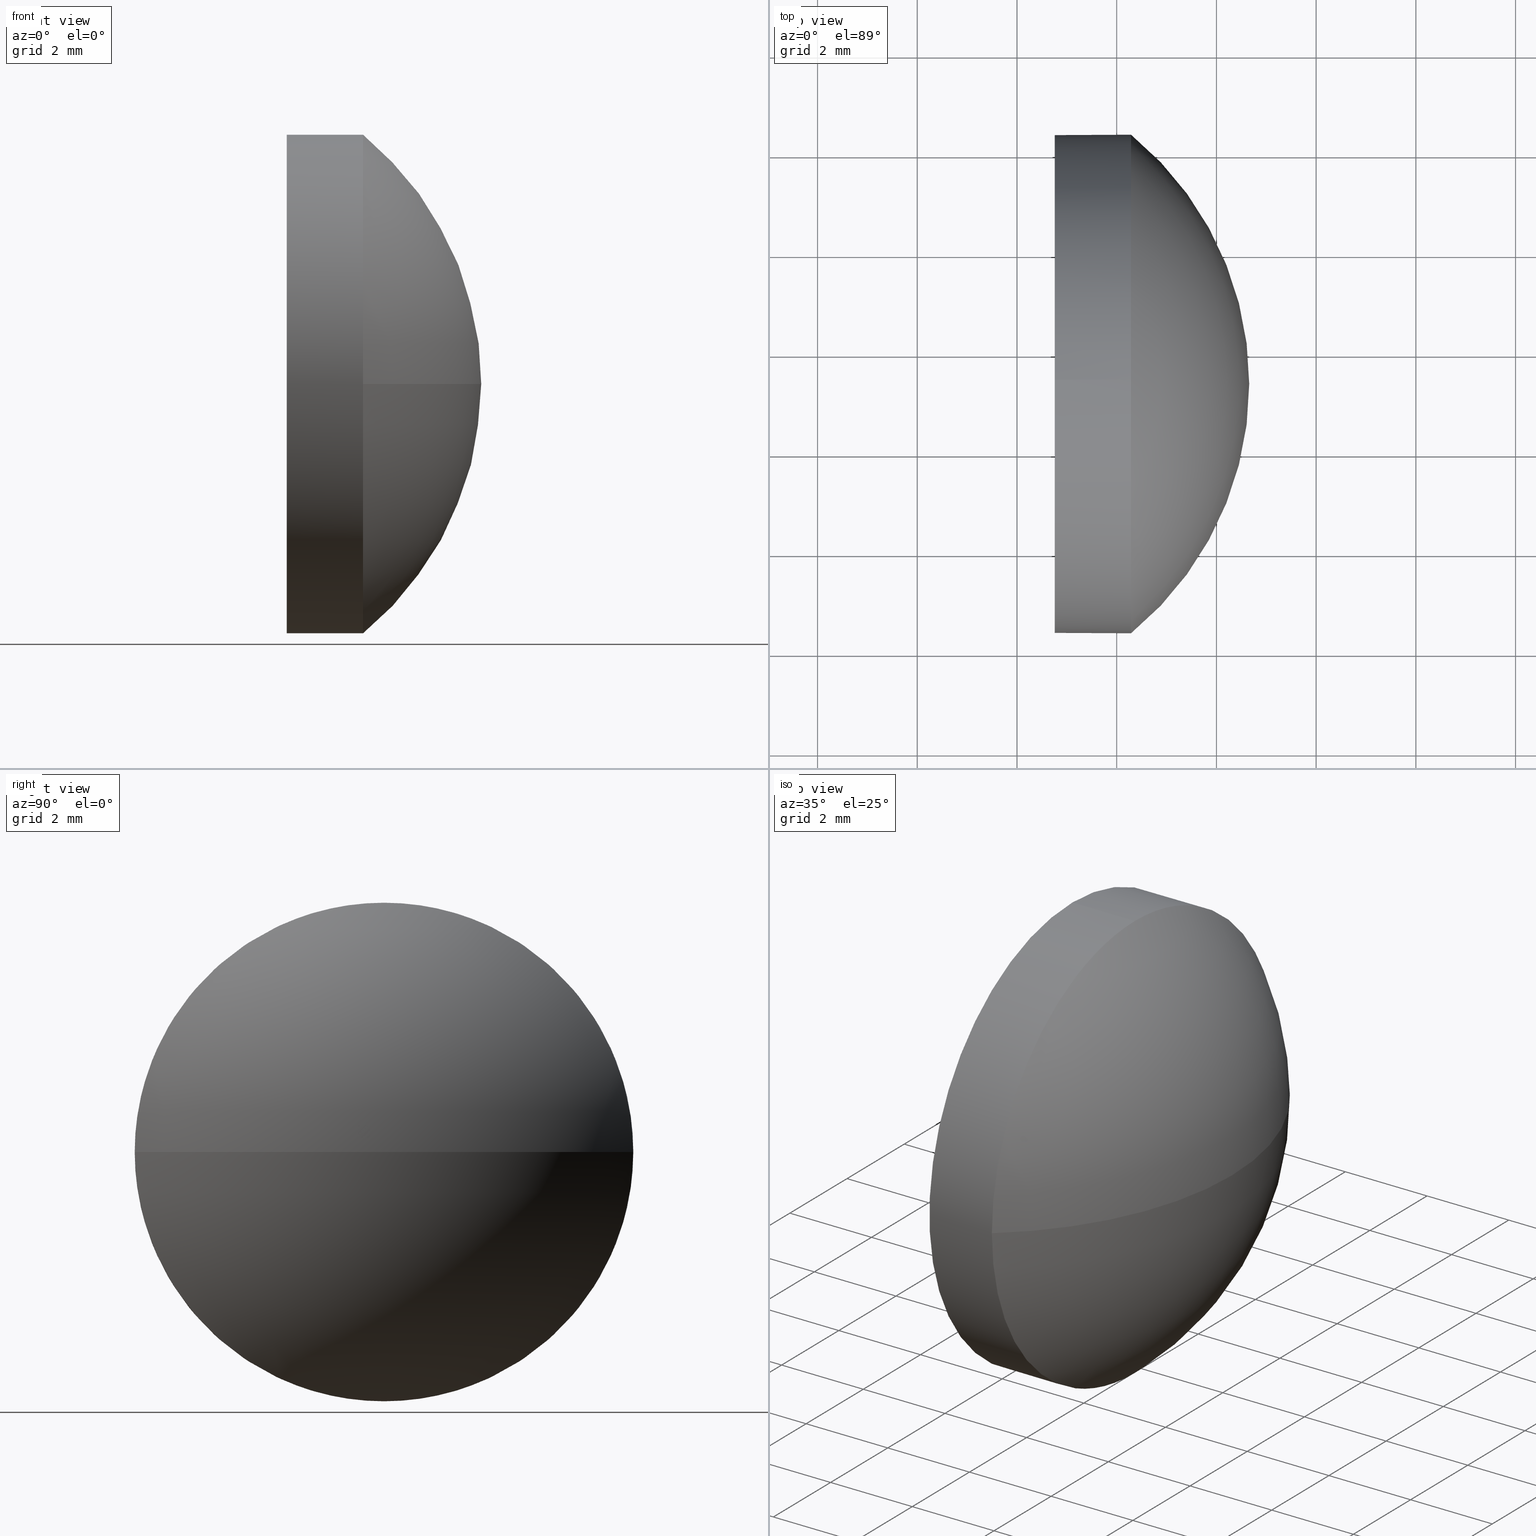
[diagram: canonical four-view strip — front | top / right | iso, engineering-drawing reading convention]
A machine part, canonical four-view strip (front | top / right | iso — engineering-drawing reading convention). The complete STEP part file that produces these views, byte-faithful:
ISO-10303-21;
HEADER;
FILE_DESCRIPTION (( 'STEP AP214' ),
    '1' );
FILE_NAME ('100100.STEP',
    '2019-05-13T06:22:10',
    ( '' ),
    ( '' ),
    'SwSTEP 2.0',
    'SolidWorks 2016',
    '' );
FILE_SCHEMA (( 'AUTOMOTIVE_DESIGN' ));
ENDSEC;

DATA;
#1 = CIRCLE ( 'NONE', #58, 4.999999999999997300 ) ;
#2 = AXIS2_PLACEMENT_3D ( 'NONE', #120, #142, #47 ) ;
#3 = CARTESIAN_POINT ( 'NONE',  ( 413.8165323501980300, 57.37242346822802100, -4.999999999999997300 ) ) ;
#4 = DIRECTION ( 'NONE',  ( -0.0000000000000000000, 0.0000000000000000000, -1.000000000000000000 ) ) ;
#5 = CARTESIAN_POINT ( 'NONE',  ( 414.7580828219724900, 57.37242346822802100, 0.0000000000000000000 ) ) ;
#6 = DIRECTION ( 'NONE',  ( 0.0000000000000000000, 0.0000000000000000000, 1.000000000000000000 ) ) ;
#7 = EDGE_CURVE ( 'NONE', #37, #113, #88, .T. ) ;
#8 = ORIENTED_EDGE ( 'NONE', *, *, #73, .F. ) ;
#9 = APPLICATION_PROTOCOL_DEFINITION ( 'draft international standard', 'automotive_design', 1998, #109 ) ;
#10 = EDGE_CURVE ( 'NONE', #86, #15, #1, .T. ) ;
#11 = DIRECTION ( 'NONE',  ( 0.0000000000000000000, 1.000000000000000000, 0.0000000000000000000 ) ) ;
#12 = ADVANCED_FACE ( 'NONE', ( #100 ), #125, .T. ) ;
#13 = DIRECTION ( 'NONE',  ( -1.000000000000000000, -0.0000000000000000000, -0.0000000000000000000 ) ) ;
#14 = PRESENTATION_STYLE_ASSIGNMENT (( #25 ) ) ;
#15 = VERTEX_POINT ( 'NONE', #22 ) ;
#16 = UNCERTAINTY_MEASURE_WITH_UNIT (LENGTH_MEASURE( 1.000000000000000100E-005 ), #119, 'distance_accuracy_value', 'NONE');
#17 = PRODUCT_DEFINITION_FORMATION_WITH_SPECIFIED_SOURCE ( '�κ�', '', #167, .NOT_KNOWN. ) ;
#18 = PRESENTATION_LAYER_ASSIGNMENT (  '', '', ( #183 ) ) ;
#19 = SURFACE_STYLE_FILL_AREA ( #60 ) ;
#20 = EDGE_LOOP ( 'NONE', ( #102, #70, #140, #84, #160 ) ) ;
#21 = AXIS2_PLACEMENT_3D ( 'NONE', #135, #155, #156 ) ;
#22 = CARTESIAN_POINT ( 'NONE',  ( 416.2880828219724700, 57.37242346822802100, 4.999999999999997300 ) ) ;
#23 = CIRCLE ( 'NONE', #39, 4.999999999999997300 ) ;
#24 = AXIS2_PLACEMENT_3D ( 'NONE', #75, #93, #122 ) ;
#25 = SURFACE_STYLE_USAGE ( .BOTH. , #117 ) ;
#26 = EDGE_CURVE ( 'NONE', #132, #37, #114, .T. ) ;
#27 = ADVANCED_FACE ( 'NONE', ( #41 ), #107, .F. ) ;
#28 = CARTESIAN_POINT ( 'NONE',  ( 412.1988212185968900, 57.37242346822802100, 0.0000000000000000000 ) ) ;
#29 = FILL_AREA_STYLE_COLOUR ( '', #69 ) ;
#30 = CARTESIAN_POINT ( 'NONE',  ( 416.2880828219724700, 57.37242346822802100, 0.0000000000000000000 ) ) ;
#31 = SHAPE_DEFINITION_REPRESENTATION ( #126, #144 ) ;
#32 = MECHANICAL_DESIGN_GEOMETRIC_PRESENTATION_REPRESENTATION (  '', ( #183 ), #85 ) ;
#33 = DIRECTION ( 'NONE',  ( 0.0000000000000000000, 1.000000000000000000, 1.224646799147353700E-016 ) ) ;
#34 = MANIFOLD_SOLID_BREP ( '��ת1', #121 ) ;
#35 = AXIS2_PLACEMENT_3D ( 'NONE', #5, #118, #43 ) ;
#36 = ORIENTED_EDGE ( 'NONE', *, *, #178, .F. ) ;
#37 = VERTEX_POINT ( 'NONE', #40 ) ;
#38 =( LENGTH_UNIT ( ) NAMED_UNIT ( * ) SI_UNIT ( .MILLI., .METRE. ) );
#39 = AXIS2_PLACEMENT_3D ( 'NONE', #30, #45, #49 ) ;
#40 = CARTESIAN_POINT ( 'NONE',  ( 414.7580828219724900, 57.37242346822802100, -4.999999999999997300 ) ) ;
#41 = FACE_OUTER_BOUND ( 'NONE', #165, .T. ) ;
#42 = DIRECTION ( 'NONE',  ( 0.0000000000000000000, 0.0000000000000000000, 1.000000000000000000 ) ) ;
#43 = DIRECTION ( 'NONE',  ( 0.0000000000000000000, 0.0000000000000000000, -1.000000000000000000 ) ) ;
#44 = DIRECTION ( 'NONE',  ( -0.0000000000000000000, 0.0000000000000000000, 1.000000000000000000 ) ) ;
#45 = DIRECTION ( 'NONE',  ( -1.000000000000000000, -0.0000000000000000000, -0.0000000000000000000 ) ) ;
#46 = AXIS2_PLACEMENT_3D ( 'NONE', #137, #174, #33 ) ;
#47 = DIRECTION ( 'NONE',  ( 0.0000000000000000000, 0.0000000000000000000, 1.000000000000000000 ) ) ;
#48 = DIRECTION ( 'NONE',  ( -1.000000000000000000, -0.0000000000000000000, -0.0000000000000000000 ) ) ;
#49 = DIRECTION ( 'NONE',  ( 0.0000000000000000000, 0.0000000000000000000, 1.000000000000000000 ) ) ;
#50 = EDGE_CURVE ( 'NONE', #132, #86, #67, .T. ) ;
#51 = FACE_OUTER_BOUND ( 'NONE', #89, .T. ) ;
#52 = EDGE_CURVE ( 'NONE', #113, #37, #101, .T. ) ;
#53 = ORIENTED_EDGE ( 'NONE', *, *, #10, .F. ) ;
#54 = AXIS2_PLACEMENT_3D ( 'NONE', #62, #180, #94 ) ;
#55 = ORIENTED_EDGE ( 'NONE', *, *, #184, .F. ) ;
#56 = CYLINDRICAL_SURFACE ( 'NONE', #54, 4.999999999999997300 ) ;
#57 = CARTESIAN_POINT ( 'NONE',  ( 412.1988212185968900, 57.37242346822802100, 0.0000000000000000000 ) ) ;
#58 = AXIS2_PLACEMENT_3D ( 'NONE', #179, #130, #42 ) ;
#59 =( LENGTH_UNIT ( ) NAMED_UNIT ( * ) SI_UNIT ( .MILLI., .METRE. ) );
#60 = FILL_AREA_STYLE ('',( #29 ) ) ;
#61 = ORIENTED_EDGE ( 'NONE', *, *, #50, .F. ) ;
#62 = CARTESIAN_POINT ( 'NONE',  ( 413.8165323501980300, 57.37242346822802100, 0.0000000000000000000 ) ) ;
#63 = PRODUCT_RELATED_PRODUCT_CATEGORY ( 'part', '', ( #167 ) ) ;
#64 = EDGE_LOOP ( 'NONE', ( #127, #77, #175, #185, #81 ) ) ;
#65 = PRODUCT_DEFINITION_CONTEXT ( 'detailed design', #154, 'design' ) ;
#66 = AXIS2_PLACEMENT_3D ( 'NONE', #28, #44, #149 ) ;
#67 = CIRCLE ( 'NONE', #134, 4.999999999999997300 ) ;
#68 = EDGE_CURVE ( 'NONE', #15, #74, #23, .T. ) ;
#69 = COLOUR_RGB ( '',1.000000000000000000, 1.000000000000000000, 1.000000000000000000 ) ;
#70 = ORIENTED_EDGE ( 'NONE', *, *, #26, .T. ) ;
#71 = CIRCLE ( 'NONE', #2, 4.999999999999997300 ) ;
#72 = DIRECTION ( 'NONE',  ( 0.0000000000000000000, 1.000000000000000000, 0.0000000000000000000 ) ) ;
#73 = EDGE_CURVE ( 'NONE', #98, #86, #104, .T. ) ;
#74 = VERTEX_POINT ( 'NONE', #158 ) ;
#75 = CARTESIAN_POINT ( 'NONE',  ( 0.0000000000000000000, 0.0000000000000000000, 0.0000000000000000000 ) ) ;
#76 = ADVANCED_FACE ( 'NONE', ( #176 ), #56, .T. ) ;
#77 = ORIENTED_EDGE ( 'NONE', *, *, #50, .T. ) ;
#78 = SPHERICAL_SURFACE ( 'NONE', #115, 6.459261603375562500 ) ;
#79 = CARTESIAN_POINT ( 'NONE',  ( 414.7580828219724900, 57.37242346822802100, 0.0000000000000000000 ) ) ;
#80 = PRODUCT_DEFINITION ( 'δ֪', '', #17, #65 ) ;
#81 = ORIENTED_EDGE ( 'NONE', *, *, #7, .F. ) ;
#82 = PRESENTATION_LAYER_ASSIGNMENT (  '', '', ( #152 ) ) ;
#83 = APPLICATION_PROTOCOL_DEFINITION ( 'draft international standard', 'automotive_design', 1998, #154 ) ;
#84 = ORIENTED_EDGE ( 'NONE', *, *, #148, .F. ) ;
#85 =( GEOMETRIC_REPRESENTATION_CONTEXT ( 3 ) GLOBAL_UNCERTAINTY_ASSIGNED_CONTEXT ( ( #110 ) ) GLOBAL_UNIT_ASSIGNED_CONTEXT ( ( #59, #111, #171 ) ) REPRESENTATION_CONTEXT ( 'NONE', 'WORKASPACE' ) );
#86 = VERTEX_POINT ( 'NONE', #173 ) ;
#87 = ORIENTED_EDGE ( 'NONE', *, *, #52, .T. ) ;
#88 = CIRCLE ( 'NONE', #21, 4.999999999999997300 ) ;
#89 = EDGE_LOOP ( 'NONE', ( #8, #143, #96, #53 ) ) ;
#90 = ADVANCED_FACE ( 'NONE', ( #166 ), #133, .T. ) ;
#91 = CARTESIAN_POINT ( 'NONE',  ( 412.1988212185968900, 57.37242346822802100, 0.0000000000000000000 ) ) ;
#92 = ORIENTED_EDGE ( 'NONE', *, *, #73, .T. ) ;
#93 = DIRECTION ( 'NONE',  ( 0.0000000000000000000, 0.0000000000000000000, 1.000000000000000000 ) ) ;
#94 = DIRECTION ( 'NONE',  ( 0.0000000000000000000, 0.0000000000000000000, 1.000000000000000000 ) ) ;
#95 = VECTOR ( 'NONE', #13, 1000.000000000000000 ) ;
#96 = ORIENTED_EDGE ( 'NONE', *, *, #68, .F. ) ;
#97 = CARTESIAN_POINT ( 'NONE',  ( 414.7580828219724900, 57.37242346822802100, 4.999999999999997300 ) ) ;
#98 = VERTEX_POINT ( 'NONE', #170 ) ;
#99 = MECHANICAL_DESIGN_GEOMETRIC_PRESENTATION_REPRESENTATION (  '', ( #152 ), #105 ) ;
#100 = FACE_OUTER_BOUND ( 'NONE', #186, .T. ) ;
#101 = CIRCLE ( 'NONE', #159, 4.999999999999997300 ) ;
#102 = ORIENTED_EDGE ( 'NONE', *, *, #178, .T. ) ;
#103 = PRESENTATION_STYLE_ASSIGNMENT (( #182 ) ) ;
#104 = CIRCLE ( 'NONE', #46, 6.459261603375559000 ) ;
#105 =( GEOMETRIC_REPRESENTATION_CONTEXT ( 3 ) GLOBAL_UNCERTAINTY_ASSIGNED_CONTEXT ( ( #131 ) ) GLOBAL_UNIT_ASSIGNED_CONTEXT ( ( #38, #146, #168 ) ) REPRESENTATION_CONTEXT ( 'NONE', 'WORKASPACE' ) );
#106 = CARTESIAN_POINT ( 'NONE',  ( 416.2880828219724700, 57.37242346822802100, 0.0000000000000000000 ) ) ;
#107 = PLANE ( 'NONE',  #35 ) ;
#108 = DIRECTION ( 'NONE',  ( 0.0000000000000000000, 0.0000000000000000000, 1.000000000000000000 ) ) ;
#109 = APPLICATION_CONTEXT ( 'automotive_design' ) ;
#110 = UNCERTAINTY_MEASURE_WITH_UNIT (LENGTH_MEASURE( 1.000000000000000100E-005 ), #59, 'distance_accuracy_value', 'NONE');
#111 =( NAMED_UNIT ( * ) PLANE_ANGLE_UNIT ( ) SI_UNIT ( $, .RADIAN. ) );
#112 = AXIS2_PLACEMENT_3D ( 'NONE', #139, #48, #6 ) ;
#113 = VERTEX_POINT ( 'NONE', #97 ) ;
#114 = LINE ( 'NONE', #3, #141 ) ;
#115 = AXIS2_PLACEMENT_3D ( 'NONE', #91, #123, #11 ) ;
#116 = FILL_AREA_STYLE_COLOUR ( '', #181 ) ;
#117 = SURFACE_SIDE_STYLE ('',( #157 ) ) ;
#118 = DIRECTION ( 'NONE',  ( 1.000000000000000000, 0.0000000000000000000, 0.0000000000000000000 ) ) ;
#119 =( LENGTH_UNIT ( ) NAMED_UNIT ( * ) SI_UNIT ( .MILLI., .METRE. ) );
#120 = CARTESIAN_POINT ( 'NONE',  ( 416.2880828219724700, 57.37242346822802100, 0.0000000000000000000 ) ) ;
#121 = CLOSED_SHELL ( 'NONE', ( #76, #12, #169, #90, #27 ) ) ;
#122 = DIRECTION ( 'NONE',  ( 1.000000000000000000, 0.0000000000000000000, 0.0000000000000000000 ) ) ;
#123 = DIRECTION ( 'NONE',  ( -0.0000000000000000000, 0.0000000000000000000, -1.000000000000000000 ) ) ;
#124 = AXIS2_PLACEMENT_3D ( 'NONE', #57, #4, #72 ) ;
#125 = SPHERICAL_SURFACE ( 'NONE', #124, 6.459261603375562500 ) ;
#126 = PRODUCT_DEFINITION_SHAPE ( 'NONE', 'NONE',  #80 ) ;
#127 = ORIENTED_EDGE ( 'NONE', *, *, #26, .F. ) ;
#128 =( GEOMETRIC_REPRESENTATION_CONTEXT ( 3 ) GLOBAL_UNCERTAINTY_ASSIGNED_CONTEXT ( ( #16 ) ) GLOBAL_UNIT_ASSIGNED_CONTEXT ( ( #119, #151, #161 ) ) REPRESENTATION_CONTEXT ( 'NONE', 'WORKASPACE' ) );
#129 = ORIENTED_EDGE ( 'NONE', *, *, #7, .T. ) ;
#130 = DIRECTION ( 'NONE',  ( -1.000000000000000000, -0.0000000000000000000, -0.0000000000000000000 ) ) ;
#131 = UNCERTAINTY_MEASURE_WITH_UNIT (LENGTH_MEASURE( 1.000000000000000100E-005 ), #38, 'distance_accuracy_value', 'NONE');
#132 = VERTEX_POINT ( 'NONE', #138 ) ;
#133 = CYLINDRICAL_SURFACE ( 'NONE', #112, 4.999999999999997300 ) ;
#134 = AXIS2_PLACEMENT_3D ( 'NONE', #106, #162, #136 ) ;
#135 = CARTESIAN_POINT ( 'NONE',  ( 414.7580828219724900, 57.37242346822802100, 0.0000000000000000000 ) ) ;
#136 = DIRECTION ( 'NONE',  ( 0.0000000000000000000, 0.0000000000000000000, 1.000000000000000000 ) ) ;
#137 = CARTESIAN_POINT ( 'NONE',  ( 412.1988212185968900, 57.37242346822802100, 0.0000000000000000000 ) ) ;
#138 = CARTESIAN_POINT ( 'NONE',  ( 416.2880828219724700, 57.37242346822802100, -4.999999999999997300 ) ) ;
#139 = CARTESIAN_POINT ( 'NONE',  ( 413.8165323501980300, 57.37242346822802100, 0.0000000000000000000 ) ) ;
#140 = ORIENTED_EDGE ( 'NONE', *, *, #52, .F. ) ;
#141 = VECTOR ( 'NONE', #147, 1000.000000000000000 ) ;
#142 = DIRECTION ( 'NONE',  ( -1.000000000000000000, -0.0000000000000000000, -0.0000000000000000000 ) ) ;
#143 = ORIENTED_EDGE ( 'NONE', *, *, #184, .T. ) ;
#144 = ADVANCED_BREP_SHAPE_REPRESENTATION ( '100100', ( #34, #24 ), #128 ) ;
#145 = LINE ( 'NONE', #164, #95 ) ;
#146 =( NAMED_UNIT ( * ) PLANE_ANGLE_UNIT ( ) SI_UNIT ( $, .RADIAN. ) );
#147 = DIRECTION ( 'NONE',  ( -1.000000000000000000, -0.0000000000000000000, -0.0000000000000000000 ) ) ;
#148 = EDGE_CURVE ( 'NONE', #15, #113, #145, .T. ) ;
#149 = DIRECTION ( 'NONE',  ( 1.000000000000000000, 0.0000000000000000000, 0.0000000000000000000 ) ) ;
#150 = SURFACE_SIDE_STYLE ('',( #19 ) ) ;
#151 =( NAMED_UNIT ( * ) PLANE_ANGLE_UNIT ( ) SI_UNIT ( $, .RADIAN. ) );
#152 = STYLED_ITEM ( 'NONE', ( #14 ), #34 ) ;
#153 = PRODUCT_CONTEXT ( 'NONE', #109, 'mechanical' ) ;
#154 = APPLICATION_CONTEXT ( 'automotive_design' ) ;
#155 = DIRECTION ( 'NONE',  ( -1.000000000000000000, -0.0000000000000000000, -0.0000000000000000000 ) ) ;
#156 = DIRECTION ( 'NONE',  ( 0.0000000000000000000, 0.0000000000000000000, 1.000000000000000000 ) ) ;
#157 = SURFACE_STYLE_FILL_AREA ( #177 ) ;
#158 = CARTESIAN_POINT ( 'NONE',  ( 416.2880828219724700, 62.37242346822802100, 0.0000000000000000000 ) ) ;
#159 = AXIS2_PLACEMENT_3D ( 'NONE', #79, #172, #108 ) ;
#160 = ORIENTED_EDGE ( 'NONE', *, *, #68, .T. ) ;
#161 =( NAMED_UNIT ( * ) SI_UNIT ( $, .STERADIAN. ) SOLID_ANGLE_UNIT ( ) );
#162 = DIRECTION ( 'NONE',  ( -1.000000000000000000, -0.0000000000000000000, -0.0000000000000000000 ) ) ;
#163 = CIRCLE ( 'NONE', #66, 6.459261603375566100 ) ;
#164 = CARTESIAN_POINT ( 'NONE',  ( 413.8165323501980300, 57.37242346822802100, 4.999999999999997300 ) ) ;
#165 = EDGE_LOOP ( 'NONE', ( #87, #129 ) ) ;
#166 = FACE_OUTER_BOUND ( 'NONE', #64, .T. ) ;
#167 = PRODUCT ( '100100', '100100', '', ( #153 ) ) ;
#168 =( NAMED_UNIT ( * ) SI_UNIT ( $, .STERADIAN. ) SOLID_ANGLE_UNIT ( ) );
#169 = ADVANCED_FACE ( 'NONE', ( #51 ), #78, .T. ) ;
#170 = CARTESIAN_POINT ( 'NONE',  ( 418.6580828219724700, 57.37242346822802100, 0.0000000000000000000 ) ) ;
#171 =( NAMED_UNIT ( * ) SI_UNIT ( $, .STERADIAN. ) SOLID_ANGLE_UNIT ( ) );
#172 = DIRECTION ( 'NONE',  ( -1.000000000000000000, -0.0000000000000000000, -0.0000000000000000000 ) ) ;
#173 = CARTESIAN_POINT ( 'NONE',  ( 416.2880828219724700, 52.37242346822802800, -6.123233995736764300E-016 ) ) ;
#174 = DIRECTION ( 'NONE',  ( 0.0000000000000000000, 1.224646799147353200E-016, -1.000000000000000000 ) ) ;
#175 = ORIENTED_EDGE ( 'NONE', *, *, #10, .T. ) ;
#176 = FACE_OUTER_BOUND ( 'NONE', #20, .T. ) ;
#177 = FILL_AREA_STYLE ('',( #116 ) ) ;
#178 = EDGE_CURVE ( 'NONE', #74, #132, #71, .T. ) ;
#179 = CARTESIAN_POINT ( 'NONE',  ( 416.2880828219724700, 57.37242346822802100, 0.0000000000000000000 ) ) ;
#180 = DIRECTION ( 'NONE',  ( -1.000000000000000000, -0.0000000000000000000, -0.0000000000000000000 ) ) ;
#181 = COLOUR_RGB ( '',1.000000000000000000, 1.000000000000000000, 1.000000000000000000 ) ;
#182 = SURFACE_STYLE_USAGE ( .BOTH. , #150 ) ;
#183 = STYLED_ITEM ( 'NONE', ( #103 ), #144 ) ;
#184 = EDGE_CURVE ( 'NONE', #98, #74, #163, .T. ) ;
#185 = ORIENTED_EDGE ( 'NONE', *, *, #148, .T. ) ;
#186 = EDGE_LOOP ( 'NONE', ( #55, #92, #61, #36 ) ) ;
ENDSEC;
END-ISO-10303-21;
